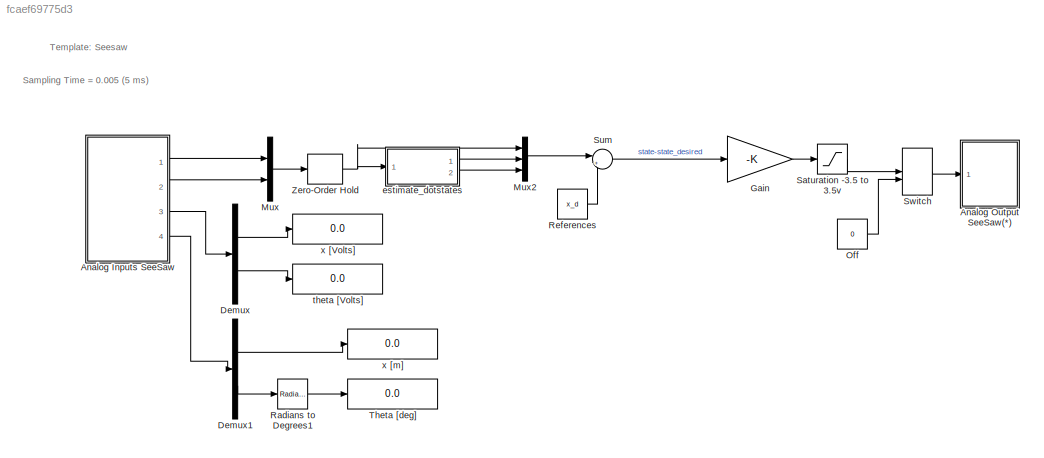
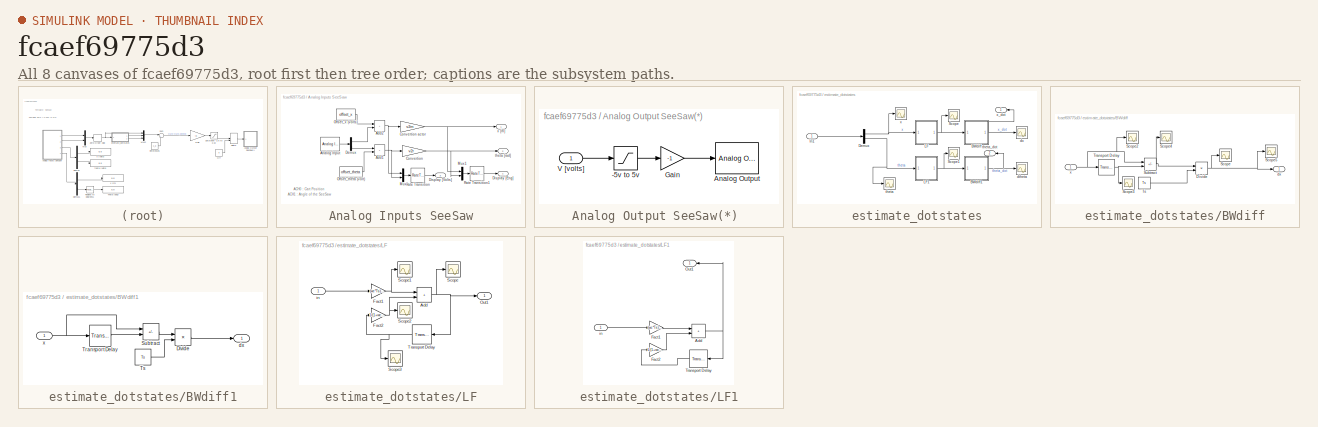
[diagram: thumbnail index - all 8 canvases of the model, root first then tree order]
MODEL slx_fcaef69775d3
KIND model
CONFIG AbsTol = auto
CONFIG EnableMultiTasking = off
CONFIG FixedStep = 0.005
CONFIG MaxStep = auto
CONFIG MinStep = auto
CONFIG RelTol = 1e-3
CONFIG SampleTimeConstraint = Unconstrained
CONFIG SolverName = ode45
CONFIG StartTime = 0.0
CONFIG StopTime = 10
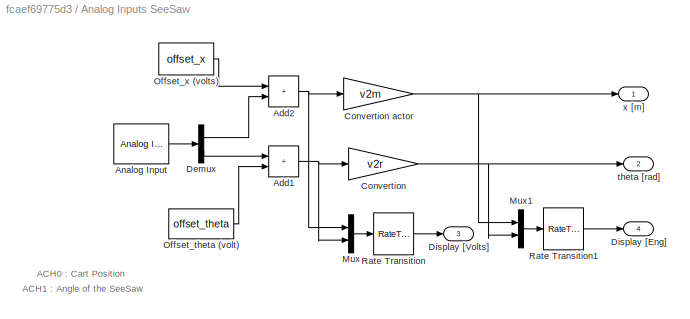
BLOCK [SubSystem] Analog Inputs SeeSaw
  Ports = [0, 4]
  RequestExecContextInheritance = off
BLOCK [Sum] Analog Inputs SeeSaw/Add1
  IconShape = rectangular
  Ports = [2, 1]
BLOCK [Sum] Analog Inputs SeeSaw/Add2
  IconShape = rectangular
  Ports = [2, 1]
BLOCK [Reference] Analog Inputs SeeSaw/Analog Input  REF=sldrtlib/Analog Input
  AttributesFormatString = National Instruments\nPCI-6014 [auto]
  Ports = [0, 1]
  SourceBlock = sldrtlib/Analog Input
  SourceProductBaseCode = WT
  SourceType = Simulink Desktop Real-Time Analog Input
BLOCK [Gain] Analog Inputs SeeSaw/Convertion 
  Gain = v2r
BLOCK [Gain] Analog Inputs SeeSaw/Convertion actor
  Gain = v2m
BLOCK [Demux] Analog Inputs SeeSaw/Demux
  Outputs = 2
  Ports = [1, 2]
BLOCK [Outport] Analog Inputs SeeSaw/Display [Eng]
  Port = 4
  VectorParamsAs1DForOutWhenUnconnected = off
BLOCK [Outport] Analog Inputs SeeSaw/Display [Volts]
  Port = 3
  VectorParamsAs1DForOutWhenUnconnected = off
BLOCK [Mux] Analog Inputs SeeSaw/Mux
  DisplayOption = bar
  Inputs = 2
  Ports = [2, 1]
BLOCK [Mux] Analog Inputs SeeSaw/Mux1
  DisplayOption = bar
  Inputs = 2
  Ports = [2, 1]
BLOCK [Constant] Analog Inputs SeeSaw/Offset_theta (volt)
  Value = offset_theta
BLOCK [Constant] Analog Inputs SeeSaw/Offset_x (volts)
  Value = offset_x
BLOCK [RateTransition] Analog Inputs SeeSaw/Rate Transition
  OutPortSampleTime = 0.25
BLOCK [RateTransition] Analog Inputs SeeSaw/Rate Transition1
  OutPortSampleTime = 0.25
BLOCK [Outport] Analog Inputs SeeSaw/theta [rad]
  Port = 2
  VectorParamsAs1DForOutWhenUnconnected = off
BLOCK [Outport] Analog Inputs SeeSaw/x [m]
  VectorParamsAs1DForOutWhenUnconnected = off
BLOCK [SubSystem] Analog Output SeeSaw(*) 
  Ports = [1]
  RequestExecContextInheritance = off
BLOCK [Saturate] Analog Output SeeSaw(*) /-5v to 5v
  LowerLimit = -5
  UpperLimit = 5
BLOCK [Reference] Analog Output SeeSaw(*) /Analog Output  REF=sldrtlib/Analog Output
  AttributesFormatString = National Instruments\nPCI-6014 [auto]
  Ports = [1]
  SourceBlock = sldrtlib/Analog Output
  SourceProductBaseCode = WT
  SourceType = Simulink Desktop Real-Time Analog Output
BLOCK [Gain] Analog Output SeeSaw(*) /Gain
  Gain = -1
BLOCK [Inport] Analog Output SeeSaw(*) /V [volts]
BLOCK [Demux] Demux
  Outputs = 2
  Ports = [1, 2]
BLOCK [Demux] Demux1
  Outputs = 2
  Ports = [1, 2]
BLOCK [Gain] Gain
  Gain = -K
  Multiplication = Matrix(K*u) (u vector)
BLOCK [Mux] Mux
  DisplayOption = bar
  Inputs = 2
  Ports = [2, 1]
BLOCK [Mux] Mux2
  DisplayOption = bar
  Inputs = 3
  Ports = [3, 1]
BLOCK [Constant] Off
  Value = 0
BLOCK [Reference] Radians to Degrees1  REF=simulink_extras/Transformations/Radians
to Degrees
  Ports = [1, 1]
  SourceBlock = simulink_extras/Transformations/Radians\nto Degrees
  SourceProductBaseCode = SL
  SourceType = RadiansToDegrees
BLOCK [Constant] References
  Value = x_d
BLOCK [Saturate] Saturation -3.5 to 3.5v
  LowerLimit = -3.5
  UpperLimit = 3.5
BLOCK [Sum] Sum
  Inputs = |+-
  NameLocation = top
  Ports = [2, 1]
BLOCK [ManualSwitch] Switch  
BLOCK [Display] Theta [deg]
  Decimation = 1
  Ports = [1]
  SampleTime = 0.25
BLOCK [ZeroOrderHold] Zero-Order Hold
  SampleTime = -1
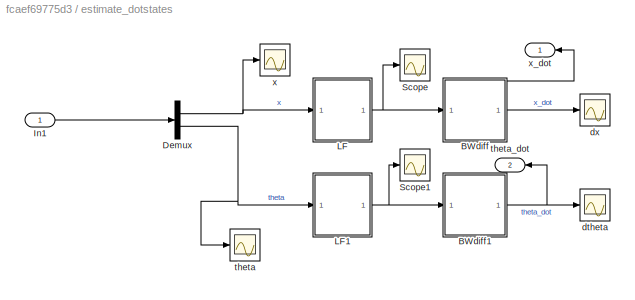
BLOCK [SubSystem] estimate_dotstates
  Ports = [1, 2]
  RequestExecContextInheritance = off
BLOCK [SubSystem] estimate_dotstates/BWdiff
  Ports = [1, 1]
  RequestExecContextInheritance = off
BLOCK [Product] estimate_dotstates/BWdiff/Divide
  Inputs = */
  Ports = [2, 1]
BLOCK [Scope] estimate_dotstates/BWdiff/Scope
  Floating = off
  NumInputPorts = 1
  Ports = [1]
  ScopeSpecificationString = Simulink.scopes.TimeScopeBlockCfg('CurrentConfiguration', extmgr.ConfigurationSet(extmgr.Configuration('Core','General UI',true),extmgr.Configuration('Core','Source UI',true),extmgr.Configuration('Sources','WiredSimulink',true,'DataLoggingVariableName','ScopeData2'),extmgr.Configuration('Visuals','Time Domain',true,'SerializedDisplays',{struct('MinYLimReal','-0.00094','MaxYLimReal','0.01541','YLab...<+1384ch>
BLOCK [Scope] estimate_dotstates/BWdiff/Scope2
  Floating = off
  NumInputPorts = 1
  Ports = [1]
  ScopeSpecificationString = Simulink.scopes.TimeScopeBlockCfg('CurrentConfiguration', extmgr.ConfigurationSet(extmgr.Configuration('Core','General UI',true),extmgr.Configuration('Core','Source UI',true),extmgr.Configuration('Sources','WiredSimulink',true,'DataLoggingVariableName','ScopeData3'),extmgr.Configuration('Visuals','Time Domain',true,'SerializedDisplays',{struct('MinYLimReal','-0.25249','MaxYLimReal','0.14027','YLab...<+1404ch>
BLOCK [Scope] estimate_dotstates/BWdiff/Scope3
  Floating = off
  NumInputPorts = 1
  Ports = [1]
  ScopeSpecificationString = Simulink.scopes.TimeScopeBlockCfg('CurrentConfiguration', extmgr.ConfigurationSet(extmgr.Configuration('Core','General UI',true),extmgr.Configuration('Core','Source UI',true),extmgr.Configuration('Sources','WiredSimulink',true,'DataLoggingVariableName','ScopeData4'),extmgr.Configuration('Visuals','Time Domain',true,'SerializedDisplays',{struct('MinYLimReal','-0.25249','MaxYLimReal','0.14027','YLab...<+1415ch>
BLOCK [Scope] estimate_dotstates/BWdiff/Scope4
  Floating = off
  NumInputPorts = 1
  Ports = [1]
  ScopeSpecificationString = Simulink.scopes.TimeScopeBlockCfg('CurrentConfiguration', extmgr.ConfigurationSet(extmgr.Configuration('Core','General UI',true),extmgr.Configuration('Core','Source UI',true),extmgr.Configuration('Sources','WiredSimulink',true,'DataLoggingVariableName','ScopeData5'),extmgr.Configuration('Visuals','Time Domain',true,'SerializedDisplays',{struct('MinYLimReal','-0.00051','MaxYLimReal','0.00046','YLab...<+1415ch>
BLOCK [Scope] estimate_dotstates/BWdiff/Scope5
  Floating = off
  NumInputPorts = 1
  Ports = [1]
  ScopeSpecificationString = Simulink.scopes.TimeScopeBlockCfg('CurrentConfiguration', extmgr.ConfigurationSet(extmgr.Configuration('Core','General UI',true),extmgr.Configuration('Core','Source UI',true),extmgr.Configuration('Sources','WiredSimulink',true,'DataLoggingVariableName','ScopeData6'),extmgr.Configuration('Visuals','Time Domain',true,'SerializedDisplays',{struct('MinYLimReal','-0.000029','MaxYLimReal','0.00005','YLa...<+1388ch>
BLOCK [Sum] estimate_dotstates/BWdiff/Subtract
  IconShape = rectangular
  Inputs = +-
  Ports = [2, 1]
BLOCK [TransportDelay] estimate_dotstates/BWdiff/Transport Delay
  DelayTime = Ts
  Ports = [1, 1]
BLOCK [Constant] estimate_dotstates/BWdiff/Ts
  Value = Ts
BLOCK [Outport] estimate_dotstates/BWdiff/dx
BLOCK [Inport] estimate_dotstates/BWdiff/x
BLOCK [SubSystem] estimate_dotstates/BWdiff1
  Ports = [1, 1]
  RequestExecContextInheritance = off
BLOCK [Product] estimate_dotstates/BWdiff1/Divide
  Inputs = */
  Ports = [2, 1]
BLOCK [Sum] estimate_dotstates/BWdiff1/Subtract
  IconShape = rectangular
  Inputs = +-
  Ports = [2, 1]
BLOCK [TransportDelay] estimate_dotstates/BWdiff1/Transport Delay
  DelayTime = Ts
  Ports = [1, 1]
BLOCK [Constant] estimate_dotstates/BWdiff1/Ts
  Value = Ts
BLOCK [Outport] estimate_dotstates/BWdiff1/dx
BLOCK [Inport] estimate_dotstates/BWdiff1/x
BLOCK [Demux] estimate_dotstates/Demux
  Outputs = 2
  Ports = [1, 2]
BLOCK [Inport] estimate_dotstates/In1
BLOCK [SubSystem] estimate_dotstates/LF
  Ports = [1, 1]
  RequestExecContextInheritance = off
BLOCK [Sum] estimate_dotstates/LF/Add
  IconShape = rectangular
  Ports = [2, 1]
BLOCK [Gain] estimate_dotstates/LF/Fact1
  Gain = (wc*Ts)/(1+wc*Ts)
BLOCK [Gain] estimate_dotstates/LF/Fact2
  Gain = 1/(1+wc*Ts)
BLOCK [Outport] estimate_dotstates/LF/Out1
BLOCK [Scope] estimate_dotstates/LF/Scope
  Floating = off
  NumInputPorts = 1
  Ports = [1]
  ScopeSpecificationString = Simulink.scopes.TimeScopeBlockCfg('CurrentConfiguration', extmgr.ConfigurationSet(extmgr.Configuration('Core','General UI',true),extmgr.Configuration('Core','Source UI',true),extmgr.Configuration('Sources','WiredSimulink',true,'DataLoggingVariableName','ScopeData7'),extmgr.Configuration('Visuals','Time Domain',true,'SerializedDisplays',{struct('MinYLimReal','-0.17621','MaxYLimReal','0.22798','YLab...<+1381ch>
BLOCK [Scope] estimate_dotstates/LF/Scope1
  Floating = off
  NumInputPorts = 1
  Ports = [1]
  ScopeSpecificationString = Simulink.scopes.TimeScopeBlockCfg('CurrentConfiguration', extmgr.ConfigurationSet(extmgr.Configuration('Core','General UI',true),extmgr.Configuration('Core','Source UI',true),extmgr.Configuration('Sources','WiredSimulink',true,'DataLoggingVariableName','ScopeData8'),extmgr.Configuration('Visuals','Time Domain',true,'SerializedDisplays',{struct('MinYLimReal','0.00016','MaxYLimReal','0.00153','YLabe...<+1444ch>
BLOCK [Scope] estimate_dotstates/LF/Scope2
  Floating = off
  NumInputPorts = 1
  Ports = [1]
  ScopeSpecificationString = Simulink.scopes.TimeScopeBlockCfg('CurrentConfiguration', extmgr.ConfigurationSet(extmgr.Configuration('Core','General UI',true),extmgr.Configuration('Core','Source UI',true),extmgr.Configuration('Sources','WiredSimulink',true,'DataLoggingVariableName','ScopeData9'),extmgr.Configuration('Visuals','Time Domain',true,'SerializedDisplays',{struct('MinYLimReal','-0.00032','MaxYLimReal','0.00162','YLab...<+1412ch>
BLOCK [Scope] estimate_dotstates/LF/Scope3
  Floating = off
  NumInputPorts = 1
  Ports = [1]
  ScopeSpecificationString = Simulink.scopes.TimeScopeBlockCfg('CurrentConfiguration', extmgr.ConfigurationSet(extmgr.Configuration('Core','General UI',true),extmgr.Configuration('Core','Source UI',true),extmgr.Configuration('Sources','WiredSimulink',true,'DataLoggingVariableName','ScopeData1'),extmgr.Configuration('Visuals','Time Domain',true),extmgr.Configuration('Tools','Plot Navigation',true),extmgr.Configuration('Tools',...<+40ch>
BLOCK [TransportDelay] estimate_dotstates/LF/Transport Delay
  DelayTime = Ts
  Ports = [1, 1]
BLOCK [Inport] estimate_dotstates/LF/in
BLOCK [SubSystem] estimate_dotstates/LF1
  Ports = [1, 1]
  RequestExecContextInheritance = off
BLOCK [Sum] estimate_dotstates/LF1/Add
  IconShape = rectangular
  Ports = [2, 1]
BLOCK [Gain] estimate_dotstates/LF1/Fact1
  Gain = (wc*Ts)/(1+wc*Ts)
BLOCK [Gain] estimate_dotstates/LF1/Fact2
  Gain = 1/(1+wc*Ts)
BLOCK [Outport] estimate_dotstates/LF1/Out1
BLOCK [TransportDelay] estimate_dotstates/LF1/Transport Delay
  DelayTime = Ts
  Ports = [1, 1]
BLOCK [Inport] estimate_dotstates/LF1/in
BLOCK [Scope] estimate_dotstates/Scope
  Floating = off
  NumInputPorts = 1
  Ports = [1]
  ScopeSpecificationString = Simulink.scopes.TimeScopeBlockCfg('CurrentConfiguration', extmgr.ConfigurationSet(extmgr.Configuration('Core','General UI',true),extmgr.Configuration('Core','Source UI',true),extmgr.Configuration('Sources','WiredSimulink',true,'DataLoggingVariableName','ScopeData5'),extmgr.Configuration('Visuals','Time Domain',true,'SerializedDisplays',{struct('MinYLimReal','-0.1104','MaxYLimReal','0.05076','YLabe...<+1385ch>
BLOCK [Scope] estimate_dotstates/Scope1
  Floating = off
  NumInputPorts = 1
  Ports = [1]
  ScopeSpecificationString = Simulink.scopes.TimeScopeBlockCfg('CurrentConfiguration', extmgr.ConfigurationSet(extmgr.Configuration('Core','General UI',true),extmgr.Configuration('Core','Source UI',true),extmgr.Configuration('Sources','WiredSimulink',true,'DataLoggingVariableName','ScopeData6'),extmgr.Configuration('Visuals','Time Domain',true),extmgr.Configuration('Tools','Plot Navigation',true),extmgr.Configuration('Tools',...<+40ch>
BLOCK [Scope] estimate_dotstates/dtheta
  Floating = off
  NumInputPorts = 1
  Ports = [1]
  ScopeSpecificationString = Simulink.scopes.TimeScopeBlockCfg('CurrentConfiguration', extmgr.ConfigurationSet(extmgr.Configuration('Core','General UI',true),extmgr.Configuration('Core','Source UI',true),extmgr.Configuration('Sources','WiredSimulink',true,'DataLoggingVariableName','ScopeData2'),extmgr.Configuration('Visuals','Time Domain',true,'SerializedDisplays',{struct('MinYLimReal','-0.13746','MaxYLimReal','0.29087','YLab...<+1368ch>
BLOCK [Scope] estimate_dotstates/dx
  Floating = off
  NumInputPorts = 1
  Ports = [1]
  ScopeSpecificationString = Simulink.scopes.TimeScopeBlockCfg('CurrentConfiguration', extmgr.ConfigurationSet(extmgr.Configuration('Core','General UI',true),extmgr.Configuration('Core','Source UI',true),extmgr.Configuration('Sources','WiredSimulink',true,'DataLoggingVariableName','ScopeData1'),extmgr.Configuration('Visuals','Time Domain',true,'SerializedDisplays',{struct('MinYLimReal','-0.62524','MaxYLimReal','0.30745','YLab...<+1394ch>
BLOCK [Scope] estimate_dotstates/theta
  Floating = off
  NumInputPorts = 1
  Ports = [1]
  ScopeSpecificationString = Simulink.scopes.TimeScopeBlockCfg('CurrentConfiguration', extmgr.ConfigurationSet(extmgr.Configuration('Core','General UI',true),extmgr.Configuration('Core','Source UI',true),extmgr.Configuration('Sources','WiredSimulink',true,'DataLoggingVariableName','ScopeData2'),extmgr.Configuration('Visuals','Time Domain',true,'SerializedDisplays',{struct('MinYLimReal','-0.12556','MaxYLimReal','0.05862','YLab...<+1364ch>
BLOCK [Outport] estimate_dotstates/theta_dot
  Port = 2
BLOCK [Scope] estimate_dotstates/x
  Floating = off
  NumInputPorts = 1
  Ports = [1]
  ScopeSpecificationString = Simulink.scopes.TimeScopeBlockCfg('CurrentConfiguration', extmgr.ConfigurationSet(extmgr.Configuration('Core','General UI',true),extmgr.Configuration('Core','Source UI',true),extmgr.Configuration('Sources','WiredSimulink',true,'DataLoggingVariableName','ScopeData1'),extmgr.Configuration('Visuals','Time Domain',true,'SerializedDisplays',{struct('MinYLimReal','-0.12568','MaxYLimReal','0.05402','YLab...<+1388ch>
BLOCK [Outport] estimate_dotstates/x_dot
BLOCK [Display] theta [Volts]
  Decimation = 1
  Ports = [1]
  SampleTime = 0.25
BLOCK [Display] x [Volts]
  Decimation = 1
  Ports = [1]
  SampleTime = 0.25
BLOCK [Display] x [m]
  Decimation = 1
  Ports = [1]
  SampleTime = 0.25
ANNOTATION (root): Sampling Time = 0.005 (5 ms)
ANNOTATION (root): Template: Seesaw
ANNOTATION Analog Inputs SeeSaw: ACH0 : Cart Position
ANNOTATION Analog Inputs SeeSaw: ACH1 : Angle of the SeeSaw
NET Analog Inputs SeeSaw/Add1:1 -> Analog Inputs SeeSaw/Convertion :1, Analog Inputs SeeSaw/Mux:2
NET Analog Inputs SeeSaw/Add2:1 -> Analog Inputs SeeSaw/Convertion actor:1, Analog Inputs SeeSaw/Mux:1
LINE Analog Inputs SeeSaw/Analog Input:1 -> Analog Inputs SeeSaw/Demux:1
NET Analog Inputs SeeSaw/Convertion :1 -> Analog Inputs SeeSaw/Mux1:2, Analog Inputs SeeSaw/theta [rad]:1
NET Analog Inputs SeeSaw/Convertion actor:1 -> Analog Inputs SeeSaw/Mux1:1, Analog Inputs SeeSaw/x [m]:1
LINE Analog Inputs SeeSaw/Demux:1 -> Analog Inputs SeeSaw/Add2:2
LINE Analog Inputs SeeSaw/Demux:2 -> Analog Inputs SeeSaw/Add1:1
LINE Analog Inputs SeeSaw/Mux1:1 -> Analog Inputs SeeSaw/Rate Transition1:1
LINE Analog Inputs SeeSaw/Mux:1 -> Analog Inputs SeeSaw/Rate Transition:1
LINE Analog Inputs SeeSaw/Offset_theta (volt):1 -> Analog Inputs SeeSaw/Add1:2
LINE Analog Inputs SeeSaw/Offset_x (volts):1 -> Analog Inputs SeeSaw/Add2:1
LINE Analog Inputs SeeSaw/Rate Transition1:1 -> Analog Inputs SeeSaw/Display [Eng]:1
LINE Analog Inputs SeeSaw/Rate Transition:1 -> Analog Inputs SeeSaw/Display [Volts]:1
LINE Analog Inputs SeeSaw:1 -> Mux:1
LINE Analog Inputs SeeSaw:2 -> Mux:2
LINE Analog Inputs SeeSaw:3 -> Demux:1
LINE Analog Inputs SeeSaw:4 -> Demux1:1
LINE Analog Output SeeSaw(*) /-5v to 5v:1 -> Analog Output SeeSaw(*) /Gain:1
LINE Analog Output SeeSaw(*) /Gain:1 -> Analog Output SeeSaw(*) /Analog Output:1
LINE Analog Output SeeSaw(*) /V [volts]:1 -> Analog Output SeeSaw(*) /-5v to 5v:1
LINE Demux1:1 -> x [m]:1
LINE Demux1:2 -> Radians to Degrees1:1
LINE Demux:1 -> x [Volts]:1
LINE Demux:2 -> theta [Volts]:1
LINE Gain:1 -> Saturation -3.5 to 3.5v:1
LINE Mux2:1 -> Sum:1
LINE Mux:1 -> Zero-Order Hold:1
LINE Off:1 -> Switch  :2
LINE Radians to Degrees1:1 -> Theta [deg]:1
LINE References:1 -> Sum:2
LINE Saturation -3.5 to 3.5v:1 -> Switch  :1
LINE Sum:1 -> Gain:1
LINE Switch  :1 -> Analog Output SeeSaw(*) :1
NET Zero-Order Hold:1 -> Mux2:1, estimate_dotstates:1
NET estimate_dotstates/BWdiff/Divide:1 -> estimate_dotstates/BWdiff/Scope5:1, estimate_dotstates/BWdiff/Scope:1, estimate_dotstates/BWdiff/dx:1
NET estimate_dotstates/BWdiff/Subtract:1 -> estimate_dotstates/BWdiff/Divide:1, estimate_dotstates/BWdiff/Scope4:1
NET estimate_dotstates/BWdiff/Transport Delay:1 -> estimate_dotstates/BWdiff/Scope3:1, estimate_dotstates/BWdiff/Subtract:2
LINE estimate_dotstates/BWdiff/Ts:1 -> estimate_dotstates/BWdiff/Divide:2
NET estimate_dotstates/BWdiff/x:1 -> estimate_dotstates/BWdiff/Scope2:1, estimate_dotstates/BWdiff/Subtract:1, estimate_dotstates/BWdiff/Transport Delay:1
LINE estimate_dotstates/BWdiff1/Divide:1 -> estimate_dotstates/BWdiff1/dx:1
LINE estimate_dotstates/BWdiff1/Subtract:1 -> estimate_dotstates/BWdiff1/Divide:1
LINE estimate_dotstates/BWdiff1/Transport Delay:1 -> estimate_dotstates/BWdiff1/Subtract:2
LINE estimate_dotstates/BWdiff1/Ts:1 -> estimate_dotstates/BWdiff1/Divide:2
NET estimate_dotstates/BWdiff1/x:1 -> estimate_dotstates/BWdiff1/Subtract:1, estimate_dotstates/BWdiff1/Transport Delay:1
NET estimate_dotstates/BWdiff1:1 -> estimate_dotstates/dtheta:1, estimate_dotstates/theta_dot:1
NET estimate_dotstates/BWdiff:1 -> estimate_dotstates/dx:1, estimate_dotstates/x_dot:1
NET estimate_dotstates/Demux:1 -> estimate_dotstates/LF:1, estimate_dotstates/x:1
NET estimate_dotstates/Demux:2 -> estimate_dotstates/LF1:1, estimate_dotstates/theta:1
LINE estimate_dotstates/In1:1 -> estimate_dotstates/Demux:1
NET estimate_dotstates/LF/Add:1 -> estimate_dotstates/LF/Out1:1, estimate_dotstates/LF/Scope:1, estimate_dotstates/LF/Transport Delay:1
NET estimate_dotstates/LF/Fact1:1 -> estimate_dotstates/LF/Add:1, estimate_dotstates/LF/Scope1:1
NET estimate_dotstates/LF/Fact2:1 -> estimate_dotstates/LF/Add:2, estimate_dotstates/LF/Scope2:1
NET estimate_dotstates/LF/Transport Delay:1 -> estimate_dotstates/LF/Fact2:1, estimate_dotstates/LF/Scope3:1
LINE estimate_dotstates/LF/in:1 -> estimate_dotstates/LF/Fact1:1
NET estimate_dotstates/LF1/Add:1 -> estimate_dotstates/LF1/Out1:1, estimate_dotstates/LF1/Transport Delay:1
LINE estimate_dotstates/LF1/Fact1:1 -> estimate_dotstates/LF1/Add:1
LINE estimate_dotstates/LF1/Fact2:1 -> estimate_dotstates/LF1/Add:2
LINE estimate_dotstates/LF1/Transport Delay:1 -> estimate_dotstates/LF1/Fact2:1
LINE estimate_dotstates/LF1/in:1 -> estimate_dotstates/LF1/Fact1:1
NET estimate_dotstates/LF1:1 -> estimate_dotstates/BWdiff1:1, estimate_dotstates/Scope1:1
NET estimate_dotstates/LF:1 -> estimate_dotstates/BWdiff:1, estimate_dotstates/Scope:1
LINE estimate_dotstates:1 -> Mux2:2
LINE estimate_dotstates:2 -> Mux2:3
note: NET lines group one-source signal fan-out (src -> all destinations, sorted); 1:1 wires keep LINE
